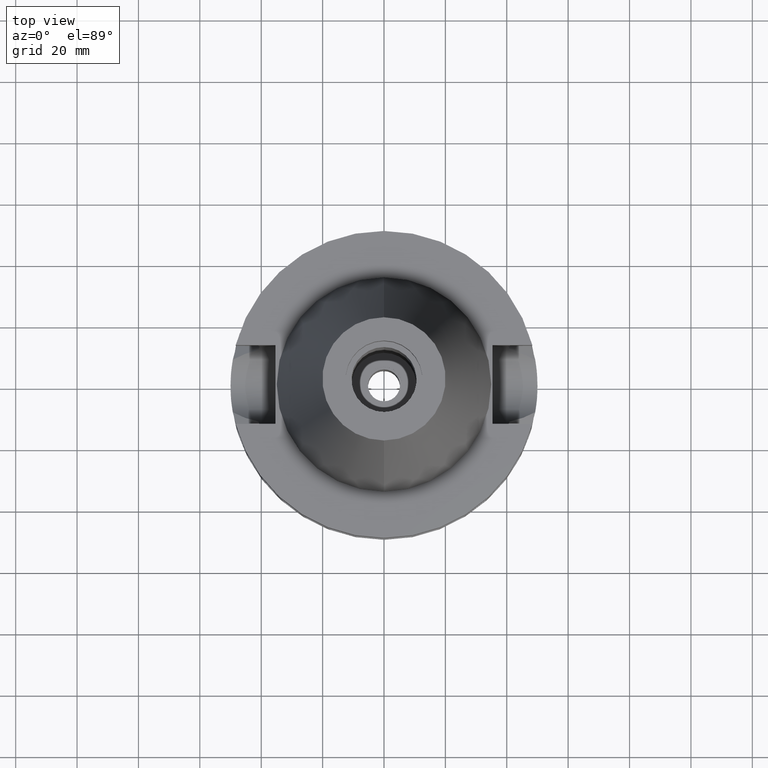
[diagram: clean part render]
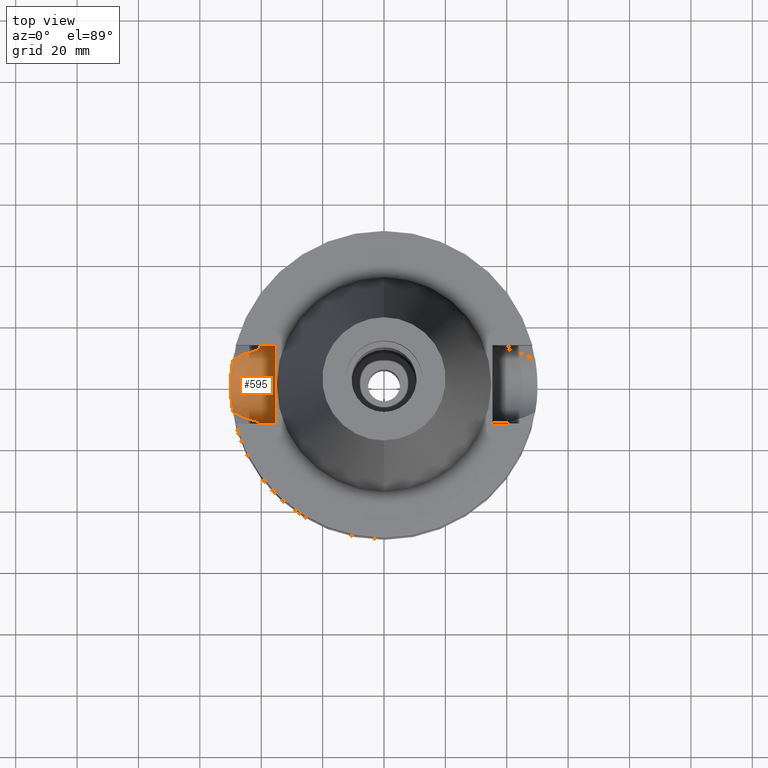
[diagram: same view with one face highlighted and labeled with its STEP entity id]
A machine part, top view. The second image highlights one B-rep face of the part: STEP entity #595.
In plain terms, the highlighted cylindrical surface (partial cylindrical patch) has radius 12.85 mm, axis along (-1, 0, 0).
Its self-contained STEP definition (entity closure, byte-faithful):
#11 = CARTESIAN_POINT ( 'NONE',  ( -49.76602569625559624, 4.832263764853330201, -33.05741896562140170 ) ) ;
#16 = CARTESIAN_POINT ( 'NONE',  ( -45.27634821851373914, 10.40391105507607250, -28.69204104990588178 ) ) ;
#18 = CARTESIAN_POINT ( 'NONE',  ( -40.58662608485432344, 12.60878154790449557, -23.62927549514129311 ) ) ;
#26 = CARTESIAN_POINT ( 'NONE',  ( -49.78718657738708941, 4.608071002247458914, -33.14537780161172265 ) ) ;
#39 = CARTESIAN_POINT ( 'NONE',  ( -40.68244601107633684, -12.29666625011165415, -24.88710380518764254 ) ) ;
#45 = CARTESIAN_POINT ( 'NONE',  ( -49.92889851897275122, -2.680302570519736527, -33.72333287899084553 ) ) ;
#76 = CARTESIAN_POINT ( 'NONE',  ( -49.79153138711316728, -4.560858291770889750, -33.16337717900022142 ) ) ;
#83 = CARTESIAN_POINT ( 'NONE',  ( -49.55886472126636733, -6.627183405214491785, -32.15923396747393070 ) ) ;
#120 = B_SPLINE_CURVE_WITH_KNOTS ( 'NONE', 3,
 ( #1740, #1489, #1948, #2908, #207, #2448, #1698, #18, #1190, #1989, #2710, #519, #2676, #3028 ),
 .UNSPECIFIED., .F., .F.,
 ( 4, 2, 2, 1, 1, 2, 2, 4 ),
 ( 0.0000000000000000000, 0.2500000000000000000, 0.3750000000000008327, 0.4375000000000012212, 0.4687500000000014988, 0.4843750000000016653, 0.5000000000000017764, 1.000000000000000000 ),
 .UNSPECIFIED. ) ;
#128 = CARTESIAN_POINT ( 'NONE',  ( -48.06470078914732369, -9.209032971910556142, -30.12395289545179011 ) ) ;
#131 = ORIENTED_EDGE ( 'NONE', *, *, #692, .F. ) ;
#142 = CARTESIAN_POINT ( 'NONE',  ( -49.72336919264395760, -5.262903667979437650, -32.87919076936038465 ) ) ;
#151 = DIRECTION ( 'NONE',  ( -1.000000000000000000, 0.0000000000000000000, 0.0000000000000000000 ) ) ;
#162 = CARTESIAN_POINT ( 'NONE',  ( -40.74530522851353709, -12.08734613714425876, -25.53455770065779618 ) ) ;
#207 = CARTESIAN_POINT ( 'NONE',  ( -40.54944727710434904, 12.72806419699610814, -22.93049076238056827 ) ) ;
#225 = CARTESIAN_POINT ( 'NONE',  ( -49.26250064874000145, 8.556052234130000045, -30.73730776426999967 ) ) ;
#248 = DIRECTION ( 'NONE',  ( 0.0000000000000000000, -1.000000000000000000, 1.133982661338924476E-14 ) ) ;
#259 = B_SPLINE_CURVE_WITH_KNOTS ( 'NONE', 3,
 ( #2355, #1195, #162, #39, #1962, #2681, #722, #1934, #974, #1020, #2913, #2299, #1574, #1652 ),
 .UNSPECIFIED., .F., .F.,
 ( 4, 2, 2, 1, 1, 2, 2, 4 ),
 ( 0.0000000000000000000, 0.2499999999999908407, 0.3749999999999861222, 0.4374999999999826250, 0.4687499999999819034, 0.4843749999999814593, 0.4999999999999810707, 1.000000000000000000 ),
 .UNSPECIFIED. ) ;
#278 = ORIENTED_EDGE ( 'NONE', *, *, #1567, .T. ) ;
#283 = ORIENTED_EDGE ( 'NONE', *, *, #1278, .T. ) ;
#284 = CARTESIAN_POINT ( 'NONE',  ( -40.85052569294000335, -11.72538061688000077, -26.40718074535000426 ) ) ;
#303 = CARTESIAN_POINT ( 'NONE',  ( -46.17227160335852432, -10.05454520068514412, -29.15267120961923553 ) ) ;
#320 = CARTESIAN_POINT ( 'NONE',  ( -49.99187212320568108, 0.9033269224952255039, -33.96962286847884371 ) ) ;
#415 = CARTESIAN_POINT ( 'NONE',  ( -35.39999999999999858, 1.497743035356999952E-14, -21.14999999999999858 ) ) ;
#458 = CARTESIAN_POINT ( 'NONE',  ( -46.87935494259345148, 9.797321363119683824, -29.51663508699209615 ) ) ;
#465 = CARTESIAN_POINT ( 'NONE',  ( -35.39999999999999858, -12.84999999999999964, -21.14999999999999858 ) ) ;
#485 = CARTESIAN_POINT ( 'NONE',  ( -49.37893249896983860, 7.861649086680057685, -31.32227597458906487 ) ) ;
#486 = CARTESIAN_POINT ( 'NONE',  ( -48.15927121453970727, 9.189158040458943688, -30.17230177073495057 ) ) ;
#498 = CARTESIAN_POINT ( 'NONE',  ( -49.70819606398264057, 5.395925773668182046, -32.81381563347725461 ) ) ;
#503 = CARTESIAN_POINT ( 'NONE',  ( -43.66129222606775784, 10.96113389162730201, -27.86029676454043269 ) ) ;
#510 = CARTESIAN_POINT ( 'NONE',  ( -49.26250064874000145, -8.556052234130000045, -30.73730776426999967 ) ) ;
#519 = CARTESIAN_POINT ( 'NONE',  ( -40.65435955981701710, 12.39001970624505411, -24.66361747048290098 ) ) ;
#523 = CARTESIAN_POINT ( 'NONE',  ( -43.95200883355096266, -10.89594475692153708, -28.01054105456284304 ) ) ;
#525 = CARTESIAN_POINT ( 'NONE',  ( -49.91494156086608314, 3.003678810931875720, -33.66822178009147137 ) ) ;
#543 = CARTESIAN_POINT ( 'NONE',  ( -49.55502993612562790, 6.655769661342176846, -32.14196323973687441 ) ) ;
#559 = CARTESIAN_POINT ( 'NONE',  ( -49.99656748919083782, 0.6198751113583861327, -33.98745238093166421 ) ) ;
#574 = CARTESIAN_POINT ( 'NONE',  ( -49.52361628428818818, 6.885959954273992878, -31.99982566454267996 ) ) ;
#590 = CARTESIAN_POINT ( 'NONE',  ( -49.54081522916999347, 6.760831092275289222, -32.07779346130057263 ) ) ;
#595 = ADVANCED_FACE ( 'NONE', ( #2272 ), #1373, .F. ) ;
#601 = VERTEX_POINT ( 'NONE', #465 ) ;
#613 = CARTESIAN_POINT ( 'NONE',  ( -47.05859043544599274, -9.676808570781791019, -29.60788274902913386 ) ) ;
#692 = EDGE_CURVE ( 'NONE', #601, #1313, #928, .T. ) ;
#697 = CARTESIAN_POINT ( 'NONE',  ( -44.03034151955200315, 10.84220994096899382, -28.05054947685522393 ) ) ;
#713 = CARTESIAN_POINT ( 'NONE',  ( -49.59445580800822739, -6.356262091312397722, -32.31864549446549972 ) ) ;
#719 = B_SPLINE_CURVE_WITH_KNOTS ( 'NONE', 3,
 ( #1742, #2008, #128, #613, #1341, #303, #755, #1964, #2468, #1281, #2238, #2712, #1729, #2699, #523, #2250, #284 ),
 .UNSPECIFIED., .F., .F.,
 ( 4, 2, 2, 1, 1, 1, 1, 1, 2, 2, 4 ),
 ( 0.0000000000000000000, 0.2500000000000078826, 0.3750000000000118239, 0.4375000000000146549, 0.4687500000000157097, 0.4843750000000165423, 0.4921875000000178746, 0.4960937500000185962, 0.4980468750000195399, 0.5000000000000205391, 1.000000000000000000 ),
 .UNSPECIFIED. ) ;
#722 = CARTESIAN_POINT ( 'NONE',  ( -40.62482961095668088, -12.48525133053583147, -24.19329755006814153 ) ) ;
#724 = CARTESIAN_POINT ( 'NONE',  ( -49.55423850347688841, -6.661675813686524172, -32.13838478411595645 ) ) ;
#752 = VECTOR ( 'NONE', #1910, 1000.000000000000000 ) ;
#755 = CARTESIAN_POINT ( 'NONE',  ( -45.89829391930676650, -10.16558497959637819, -29.01185241229442369 ) ) ;
#768 = CARTESIAN_POINT ( 'NONE',  ( -49.26250064874000145, 8.556052234130000045, -30.73730776426999967 ) ) ;
#845 = ORIENTED_EDGE ( 'NONE', *, *, #2661, .T. ) ;
#898 = CARTESIAN_POINT ( 'NONE',  ( -49.66444571831076615, -5.784797251509496085, -32.62588835513610519 ) ) ;
#915 = CARTESIAN_POINT ( 'NONE',  ( -40.51083188481999997, 12.84999999999999964, -21.14999999999999858 ) ) ;
#928 = LINE ( 'NONE', #2669, #752 ) ;
#974 = CARTESIAN_POINT ( 'NONE',  ( -40.60613670648186968, -12.54578755583301231, -23.92964714799551729 ) ) ;
#992 = CARTESIAN_POINT ( 'NONE',  ( -49.48034313897947101, -7.211008700838140939, -31.80506207767500726 ) ) ;
#994 = CARTESIAN_POINT ( 'NONE',  ( -49.78024957248936033, 4.682602905769469359, -33.11659475743748970 ) ) ;
#1010 = CARTESIAN_POINT ( 'NONE',  ( -49.79292594742167211, 4.545608915831353514, -33.16915556112208918 ) ) ;
#1020 = CARTESIAN_POINT ( 'NONE',  ( -40.60257095199571609, -12.55731571366193577, -23.87709474182198122 ) ) ;
#1042 = ORIENTED_EDGE ( 'NONE', *, *, #1600, .T. ) ;
#1133 = CARTESIAN_POINT ( 'NONE',  ( -49.80435567630854621, -4.418991950024436122, -33.21646025970182592 ) ) ;
#1190 = CARTESIAN_POINT ( 'NONE',  ( -40.59188398425018818, 12.59182459259059073, -23.71305796897122775 ) ) ;
#1195 = CARTESIAN_POINT ( 'NONE',  ( -40.79434743164174648, -11.92110232362476019, -25.97065181136010992 ) ) ;
#1219 = CARTESIAN_POINT ( 'NONE',  ( -49.55515418395864913, -6.654861456615319248, -32.14251385466415911 ) ) ;
#1259 = CARTESIAN_POINT ( 'NONE',  ( -41.70831979503379472, 11.52617643191360663, -26.85147684288867964 ) ) ;
#1278 = EDGE_CURVE ( 'NONE', #2201, #1598, #2732, .T. ) ;
#1281 = CARTESIAN_POINT ( 'NONE',  ( -45.32173445990380145, -10.38696557368014872, -28.71530564697427934 ) ) ;
#1313 = VERTEX_POINT ( 'NONE', #2510 ) ;
#1336 = CARTESIAN_POINT ( 'NONE',  ( -49.98153239810510229, -1.536309943576822823, -33.93135900360577750 ) ) ;
#1341 = CARTESIAN_POINT ( 'NONE',  ( -46.71124693321148413, -9.829930420050569495, -29.42958155129365139 ) ) ;
#1373 = CYLINDRICAL_SURFACE ( 'NONE', #1658, 12.85000000000000320 ) ;
#1384 = DIRECTION ( 'NONE',  ( 0.0000000000000000000, 0.0000000000000000000, -1.000000000000000000 ) ) ;
#1413 = ORIENTED_EDGE ( 'NONE', *, *, #2385, .T. ) ;
#1454 = CARTESIAN_POINT ( 'NONE',  ( -35.39999999999999858, 1.497743035356999952E-14, -21.14999999999999858 ) ) ;
#1464 = CARTESIAN_POINT ( 'NONE',  ( -49.72685100668401503, 5.221220378100724702, -32.89294692213771754 ) ) ;
#1489 = CARTESIAN_POINT ( 'NONE',  ( -40.51083188481999287, 12.85000000000001741, -21.59154171183339699 ) ) ;
#1493 = VERTEX_POINT ( 'NONE', #2320 ) ;
#1496 = CARTESIAN_POINT ( 'NONE',  ( -49.96641370053627895, 1.854335669567125144, -33.87145058388665575 ) ) ;
#1530 = CARTESIAN_POINT ( 'NONE',  ( -49.99918498204723250, 0.2914842724581924727, -33.99728988284423536 ) ) ;
#1567 = EDGE_CURVE ( 'NONE', #601, #2026, #2634, .T. ) ;
#1574 = CARTESIAN_POINT ( 'NONE',  ( -40.51083188482000708, -12.84999999999998543, -22.03308001794205140 ) ) ;
#1598 = VERTEX_POINT ( 'NONE', #768 ) ;
#1600 = EDGE_CURVE ( 'NONE', #2086, #2201, #120, .T. ) ;
#1615 = CARTESIAN_POINT ( 'NONE',  ( -49.50802364923287513, 6.996643992575036997, -31.92857083646990191 ) ) ;
#1638 = EDGE_LOOP ( 'NONE', ( #2412, #131, #278, #1859, #1042, #283, #1413, #845 ) ) ;
#1652 = CARTESIAN_POINT ( 'NONE',  ( -40.51083188481999997, -12.84999999999999964, -21.14999999999999858 ) ) ;
#1658 = AXIS2_PLACEMENT_3D ( 'NONE', #415, #151, #1384 ) ;
#1683 = CARTESIAN_POINT ( 'NONE',  ( -44.82928235717113807, 10.56776234856484464, -28.46200222600128171 ) ) ;
#1698 = CARTESIAN_POINT ( 'NONE',  ( -40.57496101843508995, 12.64633755876222132, -23.43369807929340709 ) ) ;
#1712 = CARTESIAN_POINT ( 'NONE',  ( -49.64903245701378154, 5.923660225815034153, -32.55987247412680574 ) ) ;
#1729 = CARTESIAN_POINT ( 'NONE',  ( -45.25003329997131374, -10.41371616422548740, -28.67841484540468144 ) ) ;
#1736 = CARTESIAN_POINT ( 'NONE',  ( -49.56403511906145098, -6.588443188363842573, -32.18250114691182517 ) ) ;
#1740 = CARTESIAN_POINT ( 'NONE',  ( -40.51083188481999997, 12.84999999999999964, -21.14999999999999858 ) ) ;
#1742 = CARTESIAN_POINT ( 'NONE',  ( -49.26250064874000145, -8.556052234130000045, -30.73730776426999967 ) ) ;
#1760 = CARTESIAN_POINT ( 'NONE',  ( -49.90703590771539666, -3.062680105237630457, -33.63596624735314577 ) ) ;
#1791 = B_SPLINE_CURVE_WITH_KNOTS ( 'NONE', 3,
 ( #2285, #3140, #485, #2253, #3009, #1615, #574, #590, #2775, #2840, #543, #2194, #2725, #1953, #1712, #498, #1464, #2209, #11, #994, #26, #1966, #2222, #1010, #2950, #525, #1496, #2503, #320, #559, #1530, #2203, #2399, #2217, #2048, #2243, #1336, #45, #1760, #2257, #2981, #2588, #1133, #2952, #2728, #76, #1806, #2318, #142, #898, #2778, #3053, #713, #1943, #1736, #83, #1937, #1219, #724, #992, #2933, #510 ),
 .UNSPECIFIED., .F., .F.,
 ( 4, 2, 2, 1, 1, 1, 1, 2, 2, 2, 2, 1, 1, 1, 2, 2, 2, 2, 1, 1, 1, 2, 2, 2, 2, 1, 1, 1, 1, 2, 2, 2, 2, 1, 1, 1, 1, 2, 2, 4 ),
 ( 0.0000000000000000000, 0.06250000000000038858, 0.09375000000000038858, 0.1093750000000002637, 0.1171875000000000555, 0.1210937499999996114, 0.1230468749999994588, 0.1240234374999994726, 0.1249999999999994726, 0.1875000000000111022, 0.2187500000000168476, 0.2343750000000195122, 0.2421875000000208722, 0.2460937500000216216, 0.2480468750000218991, 0.2500000000000221489, 0.3750000000000338063, 0.4375000000000396905, 0.4687500000000426881, 0.4843750000000441314, 0.4921875000000449085, 0.4960937500000452971, 0.5000000000000456302, 0.6250000000000576206, 0.6875000000000635048, 0.7187500000000662803, 0.7343750000000676126, 0.7421875000000685008, 0.7460937500000689448, 0.7480468750000690559, 0.7500000000000691669, 0.8125000000000679456, 0.8437500000000672795, 0.8593750000000672795, 0.8671875000000672795, 0.8710937500000669464, 0.8730468750000671685, 0.8740234375000672795, 0.8750000000000673905, 1.000000000000000000 ),
 .UNSPECIFIED. ) ;
#1806 = CARTESIAN_POINT ( 'NONE',  ( -49.79032517723027240, -4.573999506021384498, -33.15837850809957388 ) ) ;
#1859 = ORIENTED_EDGE ( 'NONE', *, *, #1997, .F. ) ;
#1889 = DIRECTION ( 'NONE',  ( 1.000000000000000000, 3.440913946376999995E-14, -1.042701195872000163E-14 ) ) ;
#1910 = DIRECTION ( 'NONE',  ( -1.000000000000000000, 3.440913946376999995E-14, 0.0000000000000000000 ) ) ;
#1934 = CARTESIAN_POINT ( 'NONE',  ( -40.61156896389279325, -12.52821669071489552, -24.00856318994577876 ) ) ;
#1937 = CARTESIAN_POINT ( 'NONE',  ( -49.55663962683647128, -6.643789794559671336, -32.14920901780814688 ) ) ;
#1943 = CARTESIAN_POINT ( 'NONE',  ( -49.57428995781964431, -6.510997233212215463, -32.22853959648935529 ) ) ;
#1948 = CARTESIAN_POINT ( 'NONE',  ( -40.51818719763605969, 12.82722225432294394, -22.03686830847679445 ) ) ;
#1953 = CARTESIAN_POINT ( 'NONE',  ( -49.60532501388166082, 6.280351744496943667, -32.36849389289631063 ) ) ;
#1958 = CARTESIAN_POINT ( 'NONE',  ( -45.38105080795718038, 10.36459315780537693, -28.74590369800099410 ) ) ;
#1962 = CARTESIAN_POINT ( 'NONE',  ( -40.66327695313978552, -12.35977177933932225, -24.67238797837626052 ) ) ;
#1964 = CARTESIAN_POINT ( 'NONE',  ( -45.57079575444381447, -10.29271808923187770, -28.84342947909450672 ) ) ;
#1966 = CARTESIAN_POINT ( 'NONE',  ( -49.79012209379631315, 4.576194113466282687, -33.15754248267386117 ) ) ;
#1989 = CARTESIAN_POINT ( 'NONE',  ( -40.59544671389547688, 12.58032818125417052, -23.76890350620602987 ) ) ;
#1997 = EDGE_CURVE ( 'NONE', #2086, #2026, #2614, .T. ) ;
#2008 = CARTESIAN_POINT ( 'NONE',  ( -48.68754748761186590, -8.885998275624471532, -30.44285225758557445 ) ) ;
#2026 = VERTEX_POINT ( 'NONE', #2371 ) ;
#2048 = CARTESIAN_POINT ( 'NONE',  ( -49.99991212798466478, -0.01359305568154834179, -34.00001368996107942 ) ) ;
#2086 = VERTEX_POINT ( 'NONE', #2171 ) ;
#2157 = EDGE_CURVE ( 'NONE', #1493, #1313, #259, .T. ) ;
#2171 = CARTESIAN_POINT ( 'NONE',  ( -40.51083188481999997, 12.84999999999999964, -21.14999999999999858 ) ) ;
#2194 = CARTESIAN_POINT ( 'NONE',  ( -49.55619344951296057, 6.647103290448037605, -32.14720616769027117 ) ) ;
#2201 = VERTEX_POINT ( 'NONE', #2367 ) ;
#2203 = CARTESIAN_POINT ( 'NONE',  ( -49.99977861994381101, 0.1279244560524239460, -33.99951148631578945 ) ) ;
#2209 = CARTESIAN_POINT ( 'NONE',  ( -49.75323403130378352, 4.961523144000312691, -33.00388751653898822 ) ) ;
#2217 = CARTESIAN_POINT ( 'NONE',  ( -49.99991319832149372, 0.01136593544914567960, -34.00001610124986229 ) ) ;
#2222 = CARTESIAN_POINT ( 'NONE',  ( -49.79207077458249131, 4.554957529756459955, -33.16561446366586807 ) ) ;
#2238 = CARTESIAN_POINT ( 'NONE',  ( -45.27993777157273314, -10.40257967896112135, -28.69380122990297721 ) ) ;
#2243 = CARTESIAN_POINT ( 'NONE',  ( -49.99934971134037198, -0.7780250450426585695, -33.99782700924481560 ) ) ;
#2250 = CARTESIAN_POINT ( 'NONE',  ( -42.48949765321938798, -11.34476471764678607, -27.25608941018916909 ) ) ;
#2253 = CARTESIAN_POINT ( 'NONE',  ( -49.45264546985067255, 7.378484263780774377, -31.67235839465014990 ) ) ;
#2257 = CARTESIAN_POINT ( 'NONE',  ( -49.86776501350951207, -3.635030136820787572, -33.47672996149706393 ) ) ;
#2272 = FACE_OUTER_BOUND ( 'NONE', #1638, .T. ) ;
#2285 = CARTESIAN_POINT ( 'NONE',  ( -49.26250064874000145, 8.556052234130000045, -30.73730776426999967 ) ) ;
#2299 = CARTESIAN_POINT ( 'NONE',  ( -40.54025086427707691, -12.75862911298345992, -22.93149008171479508 ) ) ;
#2318 = CARTESIAN_POINT ( 'NONE',  ( -49.75846009001222825, -4.919875097039126288, -33.02628834687151027 ) ) ;
#2320 = CARTESIAN_POINT ( 'NONE',  ( -40.85052569294000335, -11.72538061688000077, -26.40718074535000426 ) ) ;
#2355 = CARTESIAN_POINT ( 'NONE',  ( -40.85052569294000335, -11.72538061688000077, -26.40718074535000426 ) ) ;
#2367 = CARTESIAN_POINT ( 'NONE',  ( -40.85052569294000335, 11.72538061688000077, -26.40718074535000426 ) ) ;
#2371 = CARTESIAN_POINT ( 'NONE',  ( -35.39999999999999858, 12.84999999999999964, -21.14999999999999858 ) ) ;
#2385 = EDGE_CURVE ( 'NONE', #1598, #2768, #1791, .T. ) ;
#2399 = CARTESIAN_POINT ( 'NONE',  ( -49.99987979864274479, 0.05796992316333998002, -33.99989036820462474 ) ) ;
#2411 = CARTESIAN_POINT ( 'NONE',  ( -45.40191885395191917, 10.35671736996857639, -28.75663852399484099 ) ) ;
#2412 = ORIENTED_EDGE ( 'NONE', *, *, #2157, .T. ) ;
#2430 = CARTESIAN_POINT ( 'NONE',  ( -44.56596113250957103, 10.65989953730286821, -28.32643307822582202 ) ) ;
#2448 = CARTESIAN_POINT ( 'NONE',  ( -40.56599673094049763, 12.67509433839708954, -23.26596311456001231 ) ) ;
#2468 = CARTESIAN_POINT ( 'NONE',  ( -45.40508228864501916, -10.35565650936537807, -28.75818555560833545 ) ) ;
#2503 = CARTESIAN_POINT ( 'NONE',  ( -49.97921232366238797, 1.472283131389683586, -33.92105330255679974 ) ) ;
#2510 = CARTESIAN_POINT ( 'NONE',  ( -40.51083188481999997, -12.84999999999999964, -21.14999999999999858 ) ) ;
#2532 = AXIS2_PLACEMENT_3D ( 'NONE', #1454, #3143, #248 ) ;
#2573 = CARTESIAN_POINT ( 'NONE',  ( -49.26250064874000145, -8.556052234130000045, -30.73730776426999967 ) ) ;
#2588 = CARTESIAN_POINT ( 'NONE',  ( -49.81887950449414859, -4.253215501662761078, -33.27643327972626253 ) ) ;
#2614 = LINE ( 'NONE', #915, #2841 ) ;
#2634 = CIRCLE ( 'NONE', #2532, 12.84999999999999964 ) ;
#2656 = CARTESIAN_POINT ( 'NONE',  ( -45.34971367191958080, 10.37640097058377009, -28.72978322309122845 ) ) ;
#2661 = EDGE_CURVE ( 'NONE', #2768, #1493, #719, .T. ) ;
#2669 = CARTESIAN_POINT ( 'NONE',  ( -35.39999999999999858, -12.84999999999999964, -21.14999999999999858 ) ) ;
#2674 = CARTESIAN_POINT ( 'NONE',  ( -45.12863543442956882, 10.45876213250612530, -28.61604514532355381 ) ) ;
#2676 = CARTESIAN_POINT ( 'NONE',  ( -40.73816957792608662, 12.11682261037261377, -25.53412604446632628 ) ) ;
#2681 = CARTESIAN_POINT ( 'NONE',  ( -40.63719938804874943, -12.44499676301189162, -24.35261212848416079 ) ) ;
#2699 = CARTESIAN_POINT ( 'NONE',  ( -45.24308286831119119, -10.41630036337064880, -28.67483866301918738 ) ) ;
#2710 = CARTESIAN_POINT ( 'NONE',  ( -40.59736864107517107, 12.57412283048128643, -23.79851909554893652 ) ) ;
#2712 = CARTESIAN_POINT ( 'NONE',  ( -45.26199859643931944, -10.40926273355748677, -28.68457124044441997 ) ) ;
#2725 = CARTESIAN_POINT ( 'NONE',  ( -49.55660296223803130, 6.644051108402268646, -32.14905121248251163 ) ) ;
#2728 = CARTESIAN_POINT ( 'NONE',  ( -49.79369055535328670, -4.537227758191933802, -33.17232190023337779 ) ) ;
#2732 = B_SPLINE_CURVE_WITH_KNOTS ( 'NONE', 3,
 ( #3123, #1259, #3141, #503, #697, #2430, #1683, #2674, #16, #2656, #1958, #2411, #2944, #458, #486, #225 ),
 .UNSPECIFIED., .F., .F.,
 ( 4, 2, 2, 1, 1, 1, 1, 2, 2, 4 ),
 ( 0.0000000000000000000, 0.2500000000000142664, 0.3750000000000217049, 0.4375000000000262568, 0.4687500000000296430, 0.4843750000000322520, 0.4921875000000334732, 0.4960937500000330846, 0.5000000000000326406, 1.000000000000000000 ),
 .UNSPECIFIED. ) ;
#2768 = VERTEX_POINT ( 'NONE', #2573 ) ;
#2775 = CARTESIAN_POINT ( 'NONE',  ( -49.54916658594022749, 6.699295305708451664, -32.11552208841714418 ) ) ;
#2778 = CARTESIAN_POINT ( 'NONE',  ( -49.64375670548623276, -5.959977035971452786, -32.53601313145595242 ) ) ;
#2840 = CARTESIAN_POINT ( 'NONE',  ( -49.55328023540764093, 6.668788011903994395, -32.13407697999699053 ) ) ;
#2841 = VECTOR ( 'NONE', #1889, 1000.000000000000000 ) ;
#2908 = CARTESIAN_POINT ( 'NONE',  ( -40.54025313608426728, 12.75731810731581461, -22.70684014861738120 ) ) ;
#2913 = CARTESIAN_POINT ( 'NONE',  ( -40.60092750940732031, -12.56262654778352506, -23.85254111937892674 ) ) ;
#2933 = CARTESIAN_POINT ( 'NONE',  ( -49.38328813149483665, -7.860603762694871932, -31.35795055514022067 ) ) ;
#2944 = CARTESIAN_POINT ( 'NONE',  ( -45.41137212110677268, 10.35314443799167350, -28.76150136815438429 ) ) ;
#2950 = CARTESIAN_POINT ( 'NONE',  ( -49.86319177403027680, 3.774326660460927574, -33.45998250815065234 ) ) ;
#2952 = CARTESIAN_POINT ( 'NONE',  ( -49.79691665736714157, -4.501773781363195504, -33.18568231504609400 ) ) ;
#2981 = CARTESIAN_POINT ( 'NONE',  ( -49.84651032207663235, -3.920896851139092476, -33.39006912567991492 ) ) ;
#3009 = CARTESIAN_POINT ( 'NONE',  ( -49.47570413605632922, 7.222306621702896834, -31.77982844662367867 ) ) ;
#3028 = CARTESIAN_POINT ( 'NONE',  ( -40.85052569294000335, 11.72538061688000077, -26.40718074535000426 ) ) ;
#3053 = CARTESIAN_POINT ( 'NONE',  ( -49.61115140417926028, -6.223964730048596294, -32.39254390090870572 ) ) ;
#3123 = CARTESIAN_POINT ( 'NONE',  ( -40.85052569294000335, 11.72538061688000077, -26.40718074535000426 ) ) ;
#3140 = CARTESIAN_POINT ( 'NONE',  ( -49.32374122203080447, 8.203452261752165242, -31.05198043939414276 ) ) ;
#3141 = CARTESIAN_POINT ( 'NONE',  ( -42.51823569107745016, 11.30803590342954834, -27.27037412584214593 ) ) ;
#3143 = DIRECTION ( 'NONE',  ( 1.000000000000000000, 0.0000000000000000000, 0.0000000000000000000 ) ) ;